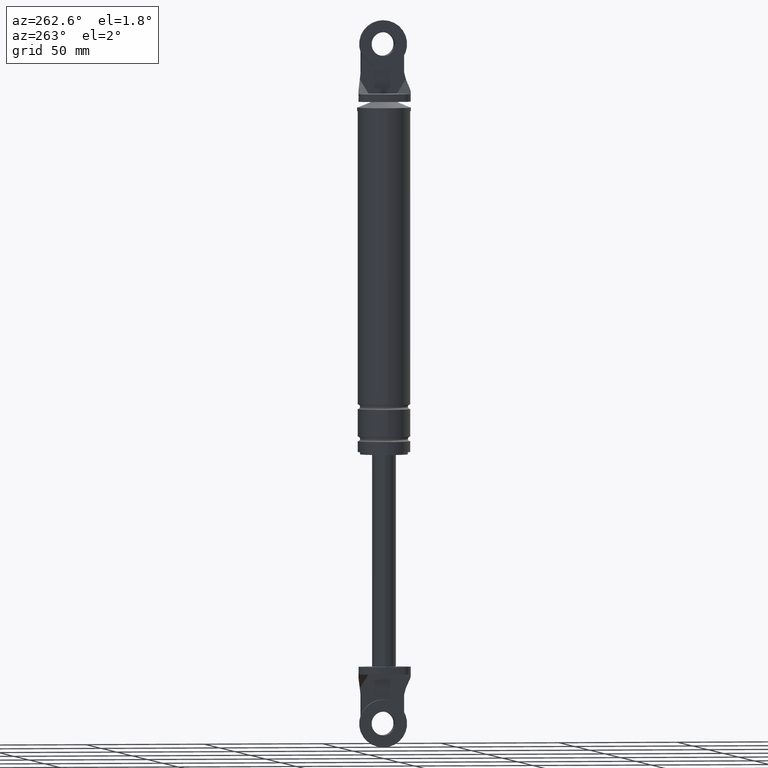
[diagram: clean part render]
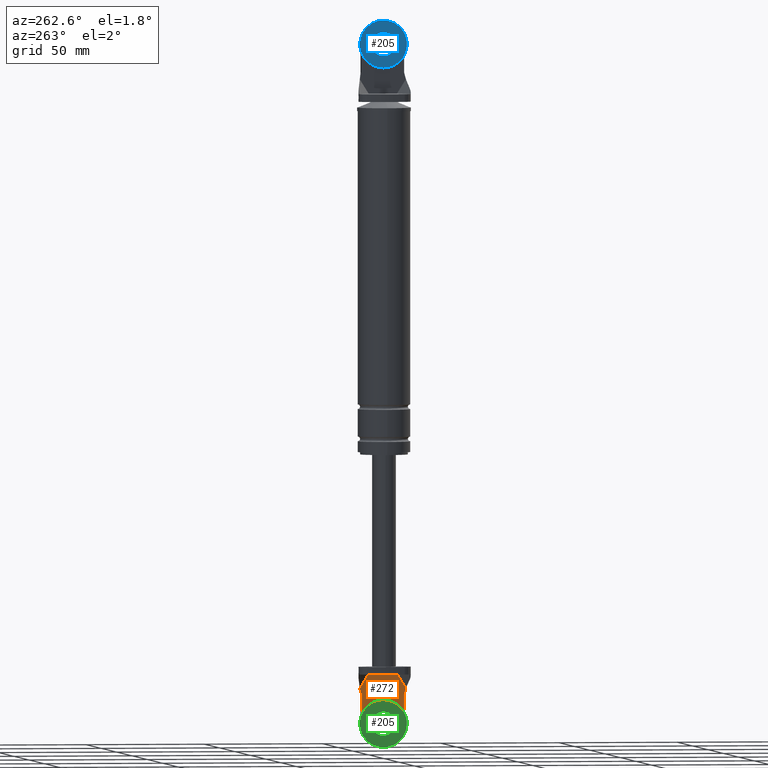
[diagram: same view with three faces highlighted in distinct colors, each labeled with its STEP entity id]
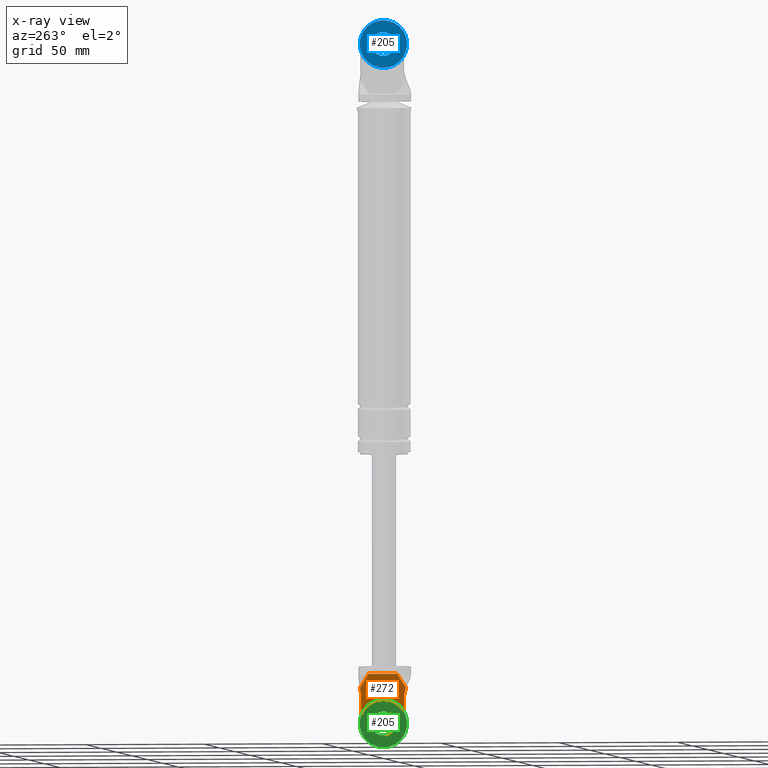
[diagram: x-ray of the same camera — body ghosted, the three highlighted faces saturated]
A machine part, auxiliary view with three faces highlighted in distinct colors.
The next image is the same camera in x-ray (body ghosted, the three faces saturated) — at least one of them is partly hidden behind the body in this view.
Their STEP definitions:

[orange] entity #272 — the highlighted planar face has unit normal (1, 0, 0).
#272=ADVANCED_FACE('',(#978,#979),#977,.F.);
#977=PLANE('',#1657);
#978=FACE_OUTER_BOUND('',#1658,.T.);
#979=FACE_BOUND('',#1659,.T.);
#1654=CARTESIAN_POINT('',(3.80000300000E+000,-1.16951792999E+001,-1.83980015732E+002));
#1655=DIRECTION('',(1.00000000000E+000,0.00000000000E+000,0.00000000000E+000));
#1656=DIRECTION('',(0.00000000000E+000,1.00000000000E+000,0.00000000000E+000));
#1657=AXIS2_PLACEMENT_3D('',#1654,#1655,#1656);
#1658=EDGE_LOOP('',(#2101,#2102,#2103,#2104,#2105,#2106,#2107,#2108,#2109,#2110));
#1659=EDGE_LOOP('',(#2111,#2112));
#2101=ORIENTED_EDGE('',*,*,#2353,.T.);
#2102=ORIENTED_EDGE('',*,*,#2359,.F.);
#2103=ORIENTED_EDGE('',*,*,#2324,.F.);
#2104=ORIENTED_EDGE('',*,*,#2360,.T.);
#2105=ORIENTED_EDGE('',*,*,#2361,.T.);
#2106=ORIENTED_EDGE('',*,*,#2362,.T.);
#2107=ORIENTED_EDGE('',*,*,#2363,.F.);
#2108=ORIENTED_EDGE('',*,*,#2364,.F.);
#2109=ORIENTED_EDGE('',*,*,#2357,.T.);
#2110=ORIENTED_EDGE('',*,*,#2355,.F.);
#2111=ORIENTED_EDGE('',*,*,#2365,.T.);
#2112=ORIENTED_EDGE('',*,*,#2366,.T.);
#2324=EDGE_CURVE('',#3334,#3341,#3342,.T.);
#2353=EDGE_CURVE('',#3536,#3529,#3537,.T.);
#2355=EDGE_CURVE('',#3536,#3549,#3550,.T.);
#2357=EDGE_CURVE('',#3562,#3549,#3563,.T.);
#2359=EDGE_CURVE('',#3341,#3529,#3575,.T.);
#2360=EDGE_CURVE('',#3334,#3581,#3582,.T.);
#2361=EDGE_CURVE('',#3581,#3588,#3589,.T.);
#2362=EDGE_CURVE('',#3588,#3595,#3596,.T.);
#2363=EDGE_CURVE('',#3602,#3595,#3603,.T.);
#2364=EDGE_CURVE('',#3562,#3602,#3609,.T.);
#2365=EDGE_CURVE('',#3615,#3616,#3617,.T.);
#2366=EDGE_CURVE('',#3616,#3615,#3623,.T.);
#3334=VERTEX_POINT('',#4297);
#3341=VERTEX_POINT('',#4301);
#3342=LINE('',#4302,#4303);
#3529=VERTEX_POINT('',#4417);
#3536=VERTEX_POINT('',#4421);
#3537=LINE('',#4422,#4423);
#3549=VERTEX_POINT('',#4428);
#3550=CIRCLE('',#4432,9.00000000000E+000);
#3562=VERTEX_POINT('',#4436);
#3563=LINE('',#4437,#4438);
#3575=LINE('',#4443,#4444);
#3581=VERTEX_POINT('',#4446);
#3582=LINE('',#4447,#4448);
#3588=VERTEX_POINT('',#4450);
#3589=LINE('',#4451,#4452);
#3595=VERTEX_POINT('',#4454);
#3596=LINE('',#4455,#4456);
#3602=VERTEX_POINT('',#4458);
#3603=LINE('',#4459,#4460);
#3609=LINE('',#4462,#4463);
#3615=VERTEX_POINT('',#4465);
#3616=VERTEX_POINT('',#4466);
#3617=CIRCLE('',#4470,5.00000000000E+000);
#3623=CIRCLE('',#4474,5.00000000000E+000);
#4297=CARTESIAN_POINT('',(3.80000300000E+000,-9.74598274994E+000,-1.57193590612E+002));
#4301=CARTESIAN_POINT('',(3.80000300000E+000,-9.74598274994E+000,-1.57215969476E+002));
#4302=CARTESIAN_POINT('',(3.80000300000E+000,-9.74598274994E+000,-1.57193590612E+002));
#4303=VECTOR('',#4304,2.23788638129E-002);
#4304=DIRECTION('',(0.00000000000E+000,0.00000000000E+000,-1.00000000000E+000));
#4417=CARTESIAN_POINT('',(3.80000300000E+000,-9.00000000000E+000,-1.60000015000E+002));
#4421=CARTESIAN_POINT('',(3.80000300000E+000,-9.00000000000E+000,-1.72000014215E+002));
#4422=CARTESIAN_POINT('',(3.80000300000E+000,-9.00000000000E+000,-1.72000014215E+002));
#4423=VECTOR('',#4424,1.19999992146E+001);
#4424=DIRECTION('',(0.00000000000E+000,0.00000000000E+000,1.00000000000E+000));
#4428=CARTESIAN_POINT('',(3.80000300000E+000,9.00000000000E+000,-1.72000015000E+002));
#4429=CARTESIAN_POINT('',(3.80000300000E+000,3.58204186421E-014,-1.72000015000E+002));
#4430=DIRECTION('',(1.00000000000E+000,0.00000000000E+000,0.00000000000E+000));
#4431=DIRECTION('',(-0.00000000000E+000,-0.00000000000E+000,1.00000000000E+000));
#4432=AXIS2_PLACEMENT_3D('',#4429,#4430,#4431);
#4436=CARTESIAN_POINT('',(3.80000300000E+000,9.00000000000E+000,-1.60000015000E+002));
#4437=CARTESIAN_POINT('',(3.80000300000E+000,9.00000000000E+000,-1.60000015000E+002));
#4438=VECTOR('',#4439,1.20000000000E+001);
#4439=DIRECTION('',(0.00000000000E+000,0.00000000000E+000,-1.00000000000E+000));
#4443=CARTESIAN_POINT('',(3.80000300000E+000,-9.74598274994E+000,-1.57215969476E+002));
#4444=VECTOR('',#4445,2.88225601652E+000);
#4445=DIRECTION('',(0.00000000000E+000,2.58819045103E-001,-9.65925826289E-001));
#4446=CARTESIAN_POINT('',(3.80000300000E+000,-6.00000000000E+000,-1.51200012000E+002));
#4447=CARTESIAN_POINT('',(3.80000300000E+000,-9.74598274994E+000,-1.57193590612E+002));
#4448=VECTOR('',#4449,7.06791138451E+000);
#4449=DIRECTION('',(0.00000000000E+000,5.29998544994E-001,8.47998550886E-001));
#4450=CARTESIAN_POINT('',(3.80000300000E+000,6.00000000000E+000,-1.51200012000E+002));
#4451=CARTESIAN_POINT('',(3.80000300000E+000,-6.00000000000E+000,-1.51200012000E+002));
#4452=VECTOR('',#4453,1.20000000000E+001);
#4453=DIRECTION('',(0.00000000000E+000,1.00000000000E+000,0.00000000000E+000));
#4454=CARTESIAN_POINT('',(3.80000300000E+000,9.74598274994E+000,-1.57193590612E+002));
#4455=CARTESIAN_POINT('',(3.80000300000E+000,6.00000000000E+000,-1.51200012000E+002));
#4456=VECTOR('',#4457,7.06791138451E+000);
#4457=DIRECTION('',(0.00000000000E+000,5.29998544994E-001,-8.47998550886E-001));
#4458=CARTESIAN_POINT('',(3.80000300000E+000,9.74598274994E+000,-1.57215969476E+002));
#4459=CARTESIAN_POINT('',(3.80000300000E+000,9.74598274994E+000,-1.57215969476E+002));
#4460=VECTOR('',#4461,2.23788638135E-002);
#4461=DIRECTION('',(0.00000000000E+000,0.00000000000E+000,1.00000000000E+000));
#4462=CARTESIAN_POINT('',(3.80000300000E+000,9.00000000000E+000,-1.60000015000E+002));
#4463=VECTOR('',#4464,2.88225601652E+000);
#4464=DIRECTION('',(0.00000000000E+000,2.58819045103E-001,9.65925826289E-001));
#4465=CARTESIAN_POINT('',(3.80000300000E+000,3.58204186421E-014,-1.77000015000E+002));
#4466=CARTESIAN_POINT('',(3.80000300000E+000,3.58231962612E-014,-1.67000015000E+002));
#4467=CARTESIAN_POINT('',(3.80000300000E+000,3.58204186421E-014,-1.72000015000E+002));
#4468=DIRECTION('',(1.00000000000E+000,0.00000000000E+000,0.00000000000E+000));
#4469=DIRECTION('',(0.00000000000E+000,-1.22460635382E-016,-1.00000000000E+000));
#4470=AXIS2_PLACEMENT_3D('',#4467,#4468,#4469);
#4471=CARTESIAN_POINT('',(3.80000300000E+000,3.58204186421E-014,-1.72000015000E+002));
#4472=DIRECTION('',(1.00000000000E+000,0.00000000000E+000,0.00000000000E+000));
#4473=DIRECTION('',(0.00000000000E+000,-1.22460635382E-016,-1.00000000000E+000));
#4474=AXIS2_PLACEMENT_3D('',#4471,#4472,#4473);

[blue] entity #205 — the highlighted planar face has unit normal (1, 0, 0).
#205=ADVANCED_FACE('',(#299,#300),#298,.F.);
#298=PLANE('',#1137);
#299=FACE_OUTER_BOUND('',#1138,.T.);
#300=FACE_BOUND('',#1139,.T.);
#1134=CARTESIAN_POINT('',(-6.90000460000E+001,2.07846096908E+001,2.76000000000E+002));
#1135=DIRECTION('',(1.00000000000E+000,0.00000000000E+000,0.00000000000E+000));
#1136=DIRECTION('',(0.00000000000E+000,-1.00000000000E+000,0.00000000000E+000));
#1137=AXIS2_PLACEMENT_3D('',#1134,#1135,#1136);
#1138=EDGE_LOOP('',(#1784,#1785));
#1139=EDGE_LOOP('',(#1786,#1787));
#1784=ORIENTED_EDGE('',*,*,#2184,.T.);
#1785=ORIENTED_EDGE('',*,*,#2185,.T.);
#1786=ORIENTED_EDGE('',*,*,#2186,.F.);
#1787=ORIENTED_EDGE('',*,*,#2187,.F.);
#2184=EDGE_CURVE('',#2408,#2409,#2410,.T.);
#2185=EDGE_CURVE('',#2409,#2408,#2416,.T.);
#2186=EDGE_CURVE('',#2422,#2423,#2424,.T.);
#2187=EDGE_CURVE('',#2423,#2422,#2430,.T.);
#2408=VERTEX_POINT('',#3728);
#2409=VERTEX_POINT('',#3729);
#2410=CIRCLE('',#3733,1.00000000000E+001);
#2416=CIRCLE('',#3737,1.00000000000E+001);
#2422=VERTEX_POINT('',#3738);
#2423=VERTEX_POINT('',#3739);
#2424=CIRCLE('',#3743,5.00000000000E+000);
#2430=CIRCLE('',#3747,5.00000000000E+000);
#3728=CARTESIAN_POINT('',(-6.90000460000E+001,5.68434188608E-014,2.43000000000E+002));
#3729=CARTESIAN_POINT('',(-6.90000460000E+001,5.80276567537E-014,2.63000000000E+002));
#3730=CARTESIAN_POINT('',(-6.90000460000E+001,5.68434188608E-014,2.53000000000E+002));
#3731=DIRECTION('',(-1.00000000000E+000,0.00000000000E+000,-0.00000000000E+000));
#3732=DIRECTION('',(0.00000000000E+000,-1.22460635382E-016,-1.00000000000E+000));
#3733=AXIS2_PLACEMENT_3D('',#3730,#3731,#3732);
#3734=CARTESIAN_POINT('',(-6.90000460000E+001,5.68434188608E-014,2.53000000000E+002));
#3735=DIRECTION('',(-1.00000000000E+000,0.00000000000E+000,-0.00000000000E+000));
#3736=DIRECTION('',(0.00000000000E+000,-1.22460635382E-016,-1.00000000000E+000));
#3737=AXIS2_PLACEMENT_3D('',#3734,#3735,#3736);
#3738=CARTESIAN_POINT('',(-6.90000460000E+001,5.74355378073E-014,2.58000000000E+002));
#3739=CARTESIAN_POINT('',(-6.90000460000E+001,5.68434188608E-014,2.48000000000E+002));
#3740=CARTESIAN_POINT('',(-6.90000460000E+001,5.68434188608E-014,2.53000000000E+002));
#3741=DIRECTION('',(-1.00000000000E+000,0.00000000000E+000,-0.00000000000E+000));
#3742=DIRECTION('',(0.00000000000E+000,-1.22460635382E-016,-1.00000000000E+000));
#3743=AXIS2_PLACEMENT_3D('',#3740,#3741,#3742);
#3744=CARTESIAN_POINT('',(-6.90000460000E+001,5.68434188608E-014,2.53000000000E+002));
#3745=DIRECTION('',(-1.00000000000E+000,0.00000000000E+000,-0.00000000000E+000));
#3746=DIRECTION('',(0.00000000000E+000,-1.22460635382E-016,-1.00000000000E+000));
#3747=AXIS2_PLACEMENT_3D('',#3744,#3745,#3746);

[green] entity #205 — the highlighted planar face has unit normal (1, 0, 0).
#205=ADVANCED_FACE('',(#299,#300),#298,.F.);
#298=PLANE('',#1137);
#299=FACE_OUTER_BOUND('',#1138,.T.);
#300=FACE_BOUND('',#1139,.T.);
#1134=CARTESIAN_POINT('',(-6.90000460000E+001,2.07846096908E+001,2.76000000000E+002));
#1135=DIRECTION('',(1.00000000000E+000,0.00000000000E+000,0.00000000000E+000));
#1136=DIRECTION('',(0.00000000000E+000,-1.00000000000E+000,0.00000000000E+000));
#1137=AXIS2_PLACEMENT_3D('',#1134,#1135,#1136);
#1138=EDGE_LOOP('',(#1784,#1785));
#1139=EDGE_LOOP('',(#1786,#1787));
#1784=ORIENTED_EDGE('',*,*,#2184,.T.);
#1785=ORIENTED_EDGE('',*,*,#2185,.T.);
#1786=ORIENTED_EDGE('',*,*,#2186,.F.);
#1787=ORIENTED_EDGE('',*,*,#2187,.F.);
#2184=EDGE_CURVE('',#2408,#2409,#2410,.T.);
#2185=EDGE_CURVE('',#2409,#2408,#2416,.T.);
#2186=EDGE_CURVE('',#2422,#2423,#2424,.T.);
#2187=EDGE_CURVE('',#2423,#2422,#2430,.T.);
#2408=VERTEX_POINT('',#3728);
#2409=VERTEX_POINT('',#3729);
#2410=CIRCLE('',#3733,1.00000000000E+001);
#2416=CIRCLE('',#3737,1.00000000000E+001);
#2422=VERTEX_POINT('',#3738);
#2423=VERTEX_POINT('',#3739);
#2424=CIRCLE('',#3743,5.00000000000E+000);
#2430=CIRCLE('',#3747,5.00000000000E+000);
#3728=CARTESIAN_POINT('',(-6.90000460000E+001,5.68434188608E-014,2.43000000000E+002));
#3729=CARTESIAN_POINT('',(-6.90000460000E+001,5.80276567537E-014,2.63000000000E+002));
#3730=CARTESIAN_POINT('',(-6.90000460000E+001,5.68434188608E-014,2.53000000000E+002));
#3731=DIRECTION('',(-1.00000000000E+000,0.00000000000E+000,-0.00000000000E+000));
#3732=DIRECTION('',(0.00000000000E+000,-1.22460635382E-016,-1.00000000000E+000));
#3733=AXIS2_PLACEMENT_3D('',#3730,#3731,#3732);
#3734=CARTESIAN_POINT('',(-6.90000460000E+001,5.68434188608E-014,2.53000000000E+002));
#3735=DIRECTION('',(-1.00000000000E+000,0.00000000000E+000,-0.00000000000E+000));
#3736=DIRECTION('',(0.00000000000E+000,-1.22460635382E-016,-1.00000000000E+000));
#3737=AXIS2_PLACEMENT_3D('',#3734,#3735,#3736);
#3738=CARTESIAN_POINT('',(-6.90000460000E+001,5.74355378073E-014,2.58000000000E+002));
#3739=CARTESIAN_POINT('',(-6.90000460000E+001,5.68434188608E-014,2.48000000000E+002));
#3740=CARTESIAN_POINT('',(-6.90000460000E+001,5.68434188608E-014,2.53000000000E+002));
#3741=DIRECTION('',(-1.00000000000E+000,0.00000000000E+000,-0.00000000000E+000));
#3742=DIRECTION('',(0.00000000000E+000,-1.22460635382E-016,-1.00000000000E+000));
#3743=AXIS2_PLACEMENT_3D('',#3740,#3741,#3742);
#3744=CARTESIAN_POINT('',(-6.90000460000E+001,5.68434188608E-014,2.53000000000E+002));
#3745=DIRECTION('',(-1.00000000000E+000,0.00000000000E+000,-0.00000000000E+000));
#3746=DIRECTION('',(0.00000000000E+000,-1.22460635382E-016,-1.00000000000E+000));
#3747=AXIS2_PLACEMENT_3D('',#3744,#3745,#3746);